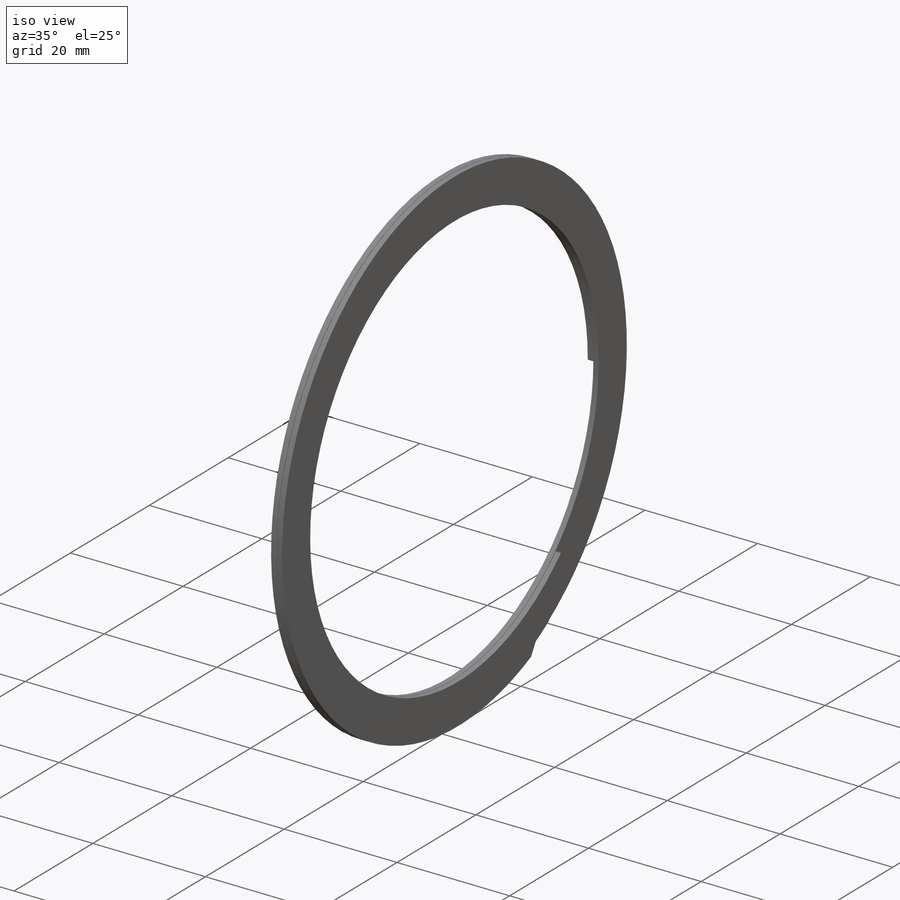
[diagram: iso view]
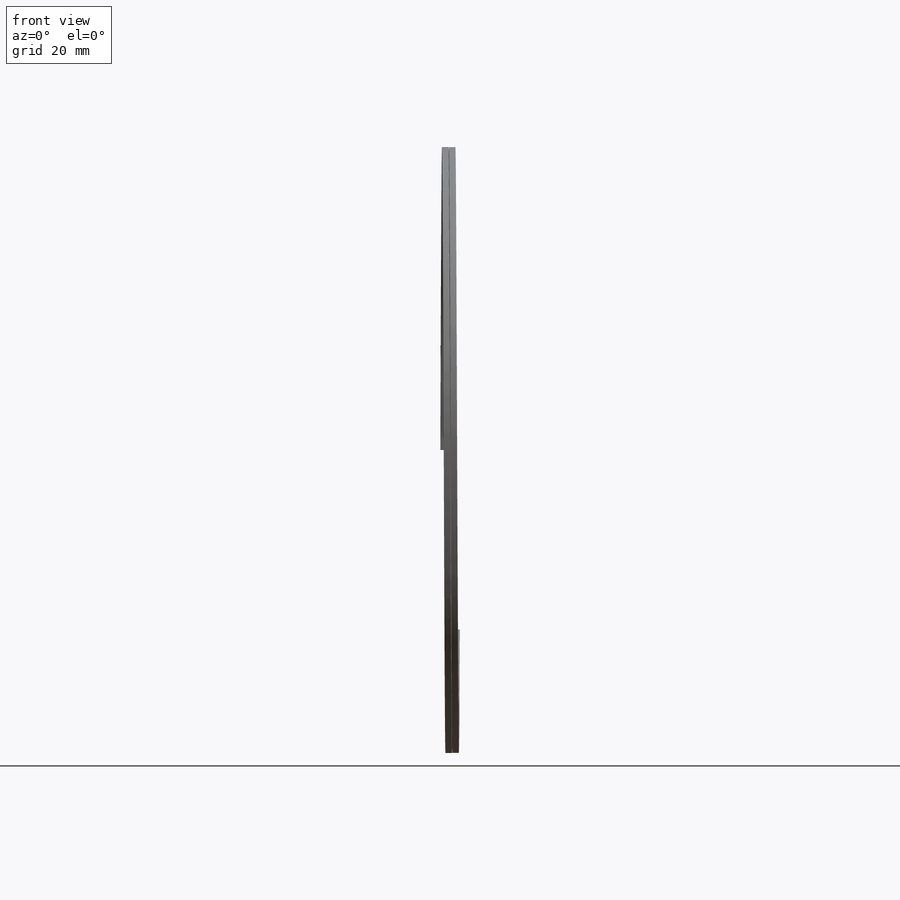
[diagram: front view]
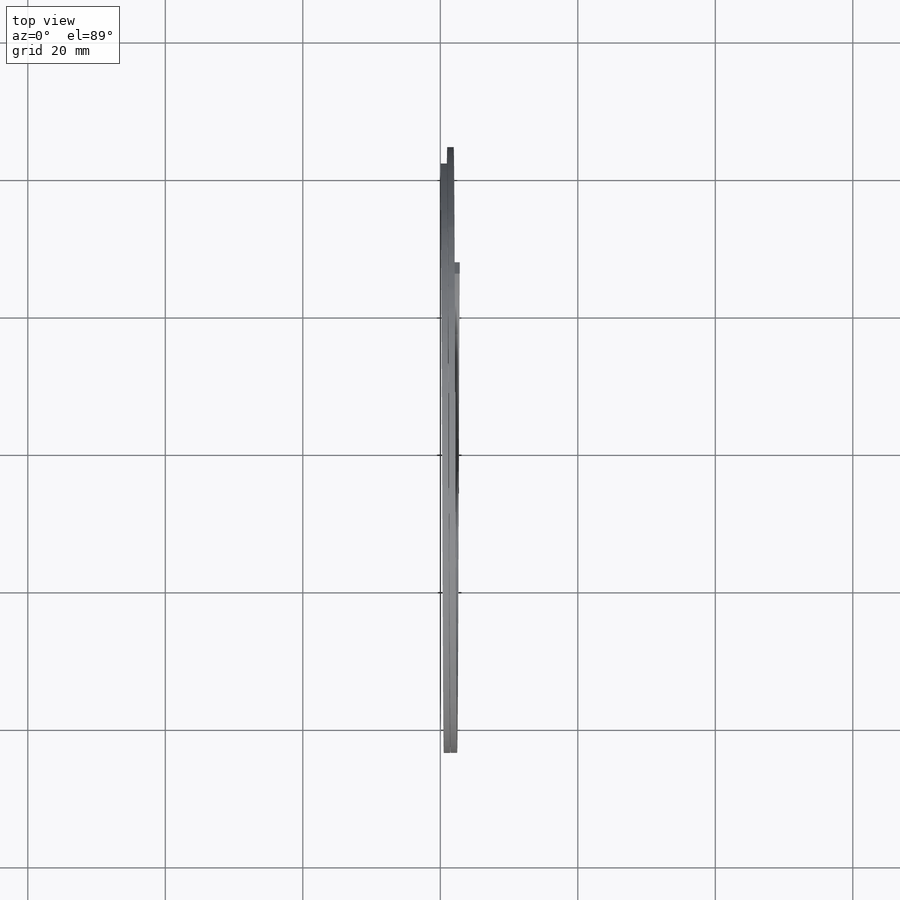
[diagram: top view]
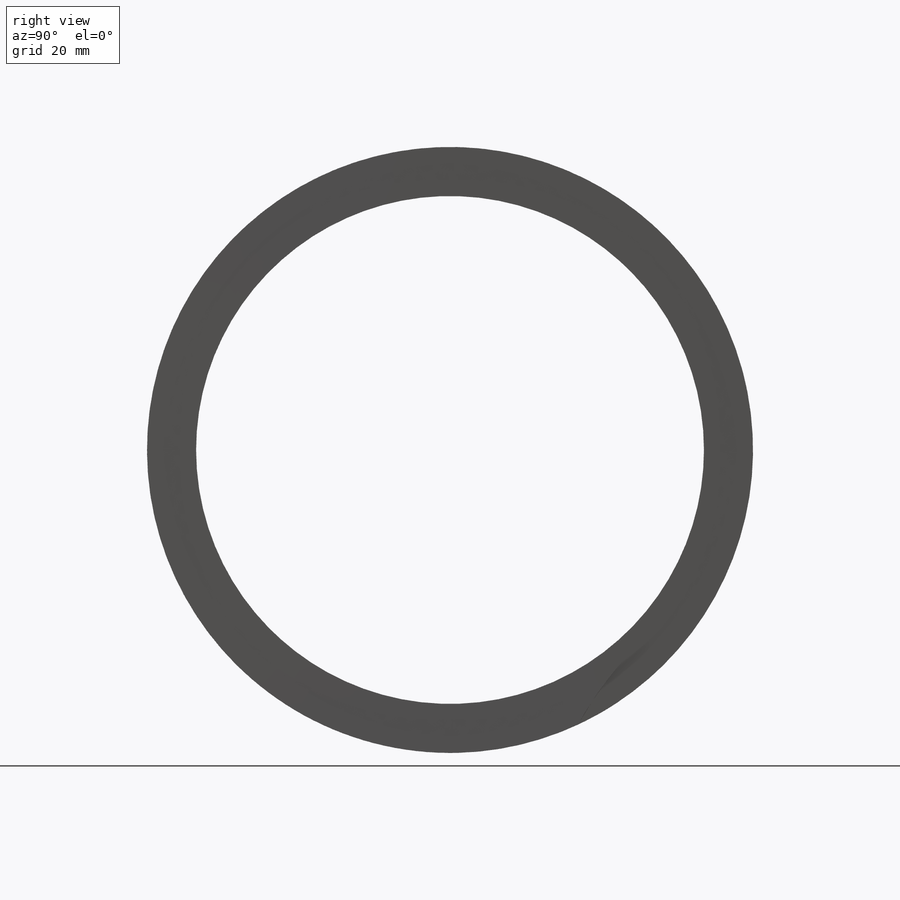
[diagram: right view]
SOLIDWORKS PART (.sldprt)
format: sldprt  version: not decoded by parser v0  size: 504,320 bytes
history: native  units: mm
features: sketch x8, cut_extrude x2, material x1, helix x1, sweep x1, plane x1, revolve x1, delete_body x1 (+13 scaffold rows collapsed)
feature tree (29):
  scaffold x13  (default folders/planes/origin — collapsed)
  material  "Material <not specified>"
  sketch  "Sketch1"  dims[c1.A=88.138mm c1.L=65.659mm c2.L=18.669mm c2.Hole=2.0mm c3.L=65.659mm c3.Smin=2.0mm c3.Smax=3.0mm c3.H=3.048mm c3.D1=~8.028579mm c4.D1=60.0deg c5.D1=~14.734659mm c6.D1=60.0deg c7.D1=~12.418379mm c8.D1=60.0deg c9.D1=~7.967052mm c10.D1=~5.305922deg c11.D1=~7.95677mm c12.D1=~7.875802deg c13.D1=~14.213573mm c14.D1=65.0deg c15.D1=~14.805637mm c16.D1=~86.929987deg c17.D1=4.064mm c18.D1=45.0deg c19.D1=~14.706012mm c20.D1=75.0deg c20.D2=23.368mm c20.Angle=1.0deg c20.H=4.4mm c20.Th=7.9248mm c21.Th=7.1374mm]
  sketch  "Sketch3"  dims[c1.T=2.8194mm c2.T=3.7592mm c2.D1=2.8194mm c2.D2=2.8194mm c3.D1=2.8194mm c3.D2=2.8194mm c4.D1=2.8194mm c4.D2=2.8194mm c5.D1=2.8194mm c5.D2=2.8194mm c5.T=2.8194mm]
  helix  "Helix/Spiral1"  Pitch=1.8796mm
  sweep  "Sweep1"
  sketch  "Sketch4"
  sketch  "Sketch6"
  sketch  "Sketch8"  dims[c1.D1=67.2719mm c2.D1=20.0deg c3.D1=67.2719mm c4.D1=20.0deg c5.D1=~63.397445mm c6.D1=20.0deg]
  cut_extrude  "Cut-Extrude4"  [1 undecoded]
  plane  "Plane1"
  sketch  "Sketch7"  dims[c1.D1=59.3471mm c2.D1=~44.999999deg]
  cut_extrude  "Cut-Extrude3"  [1 undecoded]
  sketch  "Sketch2"  dims[c1.Dg=87.5284mm c1.Ds=127.0mm c1.D1=~1.932956mm c2.D1=45.0deg c2.W=3.048mm c2.D2=60.96mm c2.D3=7.62mm c3.D1=~0.689361mm c4.D1=45.0deg c4.D3=7.62mm c4.Db=82.55mm c5.D1=7.62mm c5.D4=7.62mm c6.D1=7.62mm c6.D4=7.62mm c6.D3=15.24mm c6.W=3.048mm]
  revolve  "Revolve1"  Angle=360deg
  delete_body  "Body-Delete1"
  sketch  "Sketch9"  dims[D1=2.8194mm]
decode coverage: 8 of 14 modeling features carry decoded parameters
note: ~ marks probable driven/reference dimensions
note: 2 parameter values undecoded
note: suppression state not decoded; provenance and decode notes live in map.json
